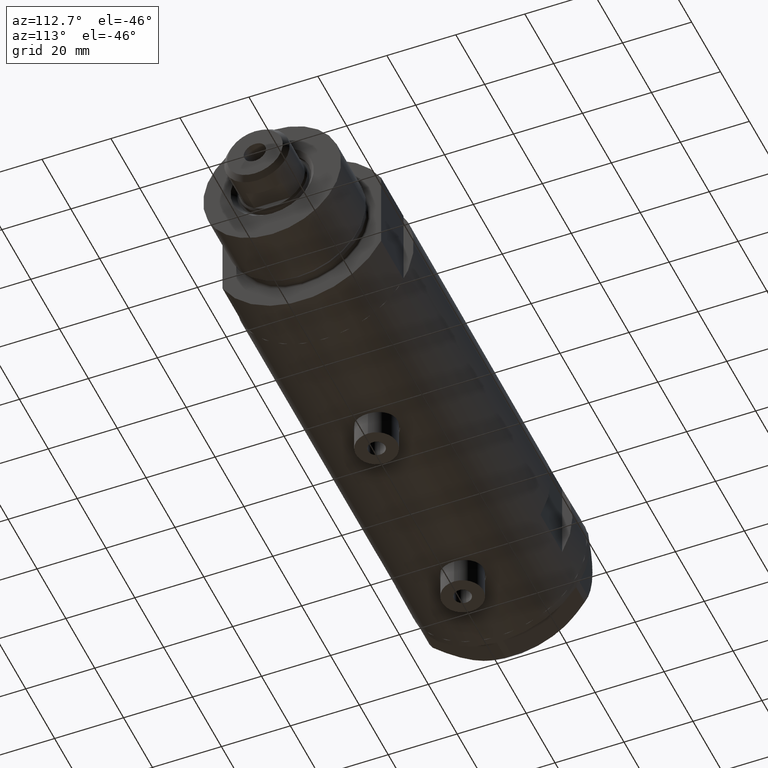
[diagram: clean part render]
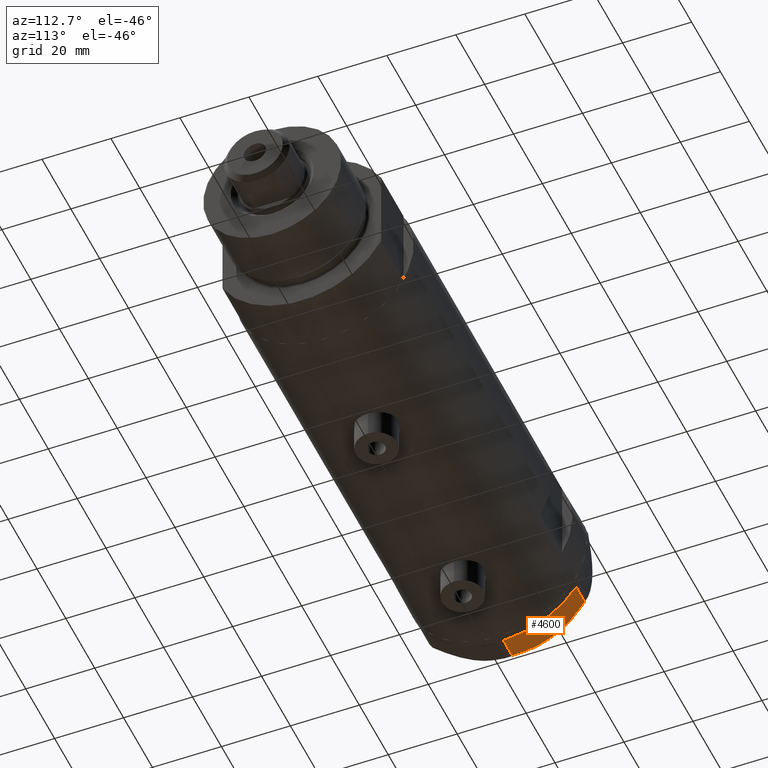
[diagram: same view with one face highlighted and labeled with its STEP entity id]
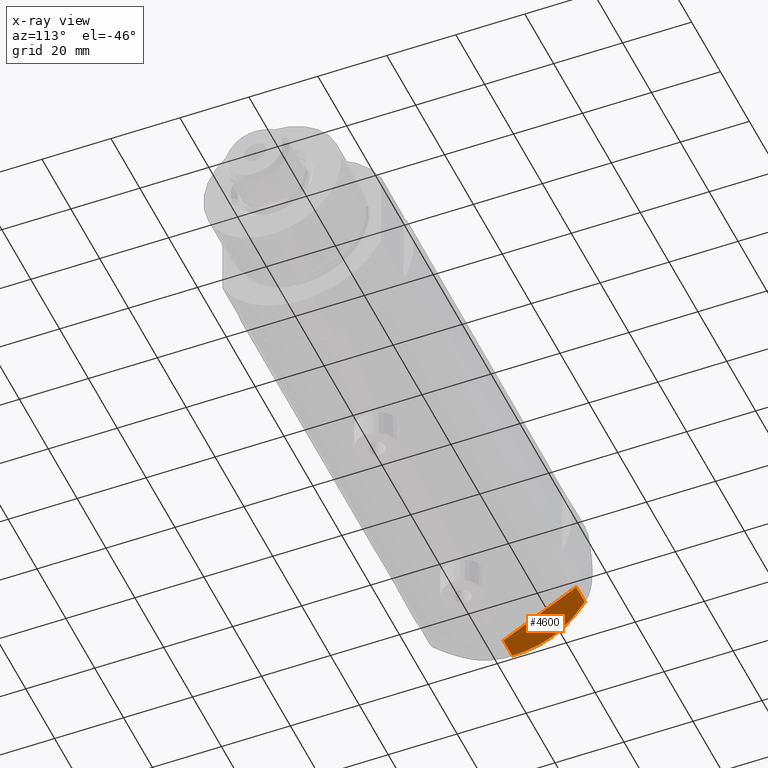
[diagram: x-ray of the same camera — body ghosted, the highlighted face saturated]
A machine part, auxiliary view. The second image highlights one B-rep face of the part: STEP entity #4600.
The next image is the same camera in x-ray: the body ghosted, the highlighted face saturated — about 0% of this face is hidden behind the body in this view.
In plain terms, the highlighted planar face has unit normal (0, -0.5, 0.866).
Its self-contained STEP definition (entity closure, byte-faithful):
#6 = CARTESIAN_POINT ( 'NONE',  ( 0.9999999999999297229, 25.98076211353316722, 0.000000000000000000 ) ) ;
#152 = EDGE_LOOP ( 'NONE', ( #3679, #4684, #1953, #3580, #2073, #2836, #2921 ) ) ;
#231 = CARTESIAN_POINT ( 'NONE',  ( 2.640413878806739945, 25.03366871902167290, 6.844201024438365089 ) ) ;
#511 = CARTESIAN_POINT ( 'NONE',  ( 22.03005154776124286, 13.83905619136163168, 0.000000000000000000 ) ) ;
#670 = CARTESIAN_POINT ( 'NONE',  ( 0.9699484522385767304, 25.99811238272274849, 5.983800287807627960 ) ) ;
#676 = CARTESIAN_POINT ( 'NONE',  ( 0.9699484522385816154, 25.99811238272274494, 9.000000000000000000 ) ) ;
#694 = CARTESIAN_POINT ( 'NONE',  ( 11.49999999999990408, 19.91858428704219364, 9.000000000000000000 ) ) ;
#699 = CARTESIAN_POINT ( 'NONE',  ( 5.671686373602799591, 23.28356272816407824, 8.040681765829278405 ) ) ;
#705 = VERTEX_POINT ( 'NONE', #511 ) ;
#1099 = CARTESIAN_POINT ( 'NONE',  ( 3.925137811030050994, 24.29193301091819635, 7.397272853991373687 ) ) ;
#1123 = AXIS2_PLACEMENT_3D ( 'NONE', #4749, #3451, #2264 ) ;
#1310 = CARTESIAN_POINT ( 'NONE',  ( 20.37350567916420019, 14.79546339452108050, 6.877782426143415506 ) ) ;
#1537 = PLANE ( 'NONE',  #1123 ) ;
#1709 = CARTESIAN_POINT ( 'NONE',  ( 22.03005154776124286, 13.83905619136163168, 9.000000000000000000 ) ) ;
#1821 = CARTESIAN_POINT ( 'NONE',  ( 1.799196345396824492, 25.51934588838292228, 6.431317509509382191 ) ) ;
#1825 = FACE_OUTER_BOUND ( 'NONE', #152, .T. ) ;
#1891 = VECTOR ( 'NONE', #2692, 1000.000000000000000 ) ;
#1953 = ORIENTED_EDGE ( 'NONE', *, *, #5113, .T. ) ;
#2073 = ORIENTED_EDGE ( 'NONE', *, *, #3275, .T. ) ;
#2142 = DIRECTION ( 'NONE',  ( -0.8660254037844415942, 0.4999999999999949485, 0.000000000000000000 ) ) ;
#2211 = CARTESIAN_POINT ( 'NONE',  ( 7.884645426989626671, 22.00591022298560517, 8.707651728476925257 ) ) ;
#2261 = CARTESIAN_POINT ( 'NONE',  ( 0.9699484522385767304, 25.99811238272274849, 5.983800287807627960 ) ) ;
#2264 = DIRECTION ( 'NONE',  ( 0.8660254037844415942, -0.4999999999999949485, 0.000000000000000000 ) ) ;
#2284 = CARTESIAN_POINT ( 'NONE',  ( 21.99999999999987210, 13.85640646055121827, 0.000000000000000000 ) ) ;
#2298 = DIRECTION ( 'NONE',  ( -0.8660254037844415942, 0.4999999999999949485, 0.000000000000000000 ) ) ;
#2334 = CARTESIAN_POINT ( 'NONE',  ( 22.03005154776138852, 13.83905619136154819, 5.983800287807532037 ) ) ;
#2351 = EDGE_CURVE ( 'NONE', #2936, #3665, #3186, .T. ) ;
#2375 = EDGE_CURVE ( 'NONE', #3463, #3665, #3422, .T. ) ;
#2406 = CARTESIAN_POINT ( 'NONE',  ( 12.41906678023027588, 19.38796083407295967, 8.981686407609410949 ) ) ;
#2421 = VERTEX_POINT ( 'NONE', #2284 ) ;
#2513 = CARTESIAN_POINT ( 'NONE',  ( 22.03005154776138852, 13.83905619136154819, 5.983800287807532037 ) ) ;
#2598 = VERTEX_POINT ( 'NONE', #2334 ) ;
#2692 = DIRECTION ( 'NONE',  ( 0.000000000000000000, 0.000000000000000000, 1.000000000000000000 ) ) ;
#2709 = DIRECTION ( 'NONE',  ( -0.8660254037844415942, 0.4999999999999949485, 0.000000000000000000 ) ) ;
#2776 = CARTESIAN_POINT ( 'NONE',  ( 22.99999999999981171, 13.27905619136164184, 0.000000000000000000 ) ) ;
#2796 = CARTESIAN_POINT ( 'NONE',  ( 18.67981377008996446, 15.77331687414937278, 7.629374868826049649 ) ) ;
#2836 = ORIENTED_EDGE ( 'NONE', *, *, #2375, .T. ) ;
#2908 = LINE ( 'NONE', #4231, #4937 ) ;
#2921 = ORIENTED_EDGE ( 'NONE', *, *, #2351, .F. ) ;
#2936 = VERTEX_POINT ( 'NONE', #694 ) ;
#2948 = LINE ( 'NONE', #1709, #3367 ) ;
#2989 = LINE ( 'NONE', #3465, #3925 ) ;
#3186 = B_SPLINE_CURVE_WITH_KNOTS ( 'NONE', 3,
 ( #4524, #3828, #2211, #699, #4313, #3882, #1099, #231, #1821, #2261 ),
 .UNSPECIFIED., .F., .F.,
 ( 4, 2, 2, 2, 4 ),
 ( 0.01376519981810293489, 0.01998941321701561136, 0.02154546656674377961, 0.02310151991647194786, 0.02621362661592828783 ),
 .UNSPECIFIED. ) ;
#3220 = CARTESIAN_POINT ( 'NONE',  ( 0.9699484522385816154, 25.99811238272274494, 0.000000000000000000 ) ) ;
#3237 = CARTESIAN_POINT ( 'NONE',  ( 15.16323225988329959, 17.80361615569442790, 8.637313967156861949 ) ) ;
#3262 = CARTESIAN_POINT ( 'NONE',  ( 16.05322244309623869, 17.28978008384030929, 8.426899937603700153 ) ) ;
#3275 = EDGE_CURVE ( 'NONE', #3466, #3463, #2908, .T. ) ;
#3367 = VECTOR ( 'NONE', #4585, 1000.000000000000000 ) ;
#3422 = LINE ( 'NONE', #676, #1891 ) ;
#3451 = DIRECTION ( 'NONE',  ( -0.4999999999999949485, -0.8660254037844415942, 0.000000000000000000 ) ) ;
#3463 = VERTEX_POINT ( 'NONE', #3220 ) ;
#3465 = CARTESIAN_POINT ( 'NONE',  ( 22.99999999999981171, 13.27905619136164184, 0.000000000000000000 ) ) ;
#3466 = VERTEX_POINT ( 'NONE', #6 ) ;
#3576 = EDGE_CURVE ( 'NONE', #2421, #3466, #2989, .T. ) ;
#3580 = ORIENTED_EDGE ( 'NONE', *, *, #3576, .T. ) ;
#3641 = CARTESIAN_POINT ( 'NONE',  ( 11.95865151389051917, 19.65378171203322566, 9.000000000000005329 ) ) ;
#3665 = VERTEX_POINT ( 'NONE', #670 ) ;
#3679 = ORIENTED_EDGE ( 'NONE', *, *, #5193, .F. ) ;
#3828 = CARTESIAN_POINT ( 'NONE',  ( 9.678244919010086988, 20.97037507344920826, 9.000000000000001776 ) ) ;
#3882 = CARTESIAN_POINT ( 'NONE',  ( 4.357207709416038632, 24.04247733877631532, 7.570552255229681116 ) ) ;
#3925 = VECTOR ( 'NONE', #2709, 999.9999999999998863 ) ;
#3984 = LINE ( 'NONE', #2776, #4450 ) ;
#4109 = CARTESIAN_POINT ( 'NONE',  ( 11.49999999999990408, 19.91858428704219364, 9.000000000000000000 ) ) ;
#4231 = CARTESIAN_POINT ( 'NONE',  ( 22.99999999999981171, 13.27905619136164184, 0.000000000000000000 ) ) ;
#4288 = B_SPLINE_CURVE_WITH_KNOTS ( 'NONE', 3,
 ( #2513, #1310, #2796, #3262, #3237, #4815, #4919, #2406, #3641, #4109 ),
 .UNSPECIFIED., .F., .F.,
 ( 4, 2, 2, 2, 4 ),
 ( 0.001228959670438493522, 0.007497079744270714746, 0.01063113978118682655, 0.01219816979964488159, 0.01376519981810293489 ),
 .UNSPECIFIED. ) ;
#4313 = CARTESIAN_POINT ( 'NONE',  ( 5.229981517798067081, 23.53858114556529912, 7.892128867758392730 ) ) ;
#4433 = EDGE_CURVE ( 'NONE', #2598, #705, #2948, .T. ) ;
#4450 = VECTOR ( 'NONE', #2298, 999.9999999999998863 ) ;
#4524 = CARTESIAN_POINT ( 'NONE',  ( 11.49999999999990408, 19.91858428704219364, 9.000000000000000000 ) ) ;
#4585 = DIRECTION ( 'NONE',  ( 0.000000000000000000, 0.000000000000000000, -1.000000000000000000 ) ) ;
#4600 = ADVANCED_FACE ( 'NONE', ( #1825 ), #1537, .F. ) ;
#4684 = ORIENTED_EDGE ( 'NONE', *, *, #4433, .T. ) ;
#4749 = CARTESIAN_POINT ( 'NONE',  ( 22.99999999999981171, 13.27905619136164184, 9.000000000000000000 ) ) ;
#4815 = CARTESIAN_POINT ( 'NONE',  ( 13.80210138309697498, 18.58946543380931260, 8.852712638955710034 ) ) ;
#4919 = CARTESIAN_POINT ( 'NONE',  ( 13.34348161667005073, 18.85424967941157703, 8.907842277728345692 ) ) ;
#4937 = VECTOR ( 'NONE', #2142, 999.9999999999998863 ) ;
#5113 = EDGE_CURVE ( 'NONE', #705, #2421, #3984, .T. ) ;
#5193 = EDGE_CURVE ( 'NONE', #2598, #2936, #4288, .T. ) ;